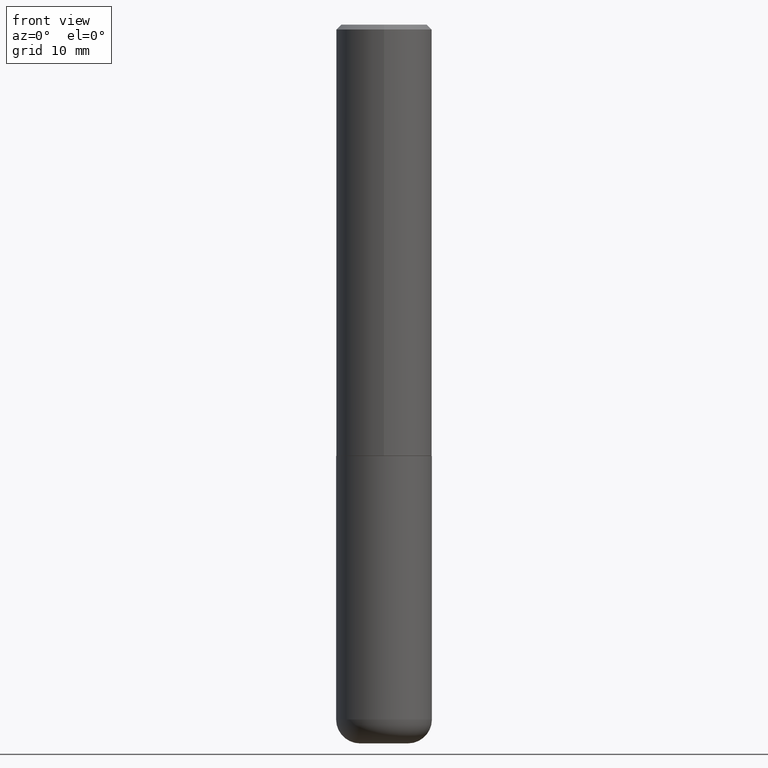
[diagram: clean part render]
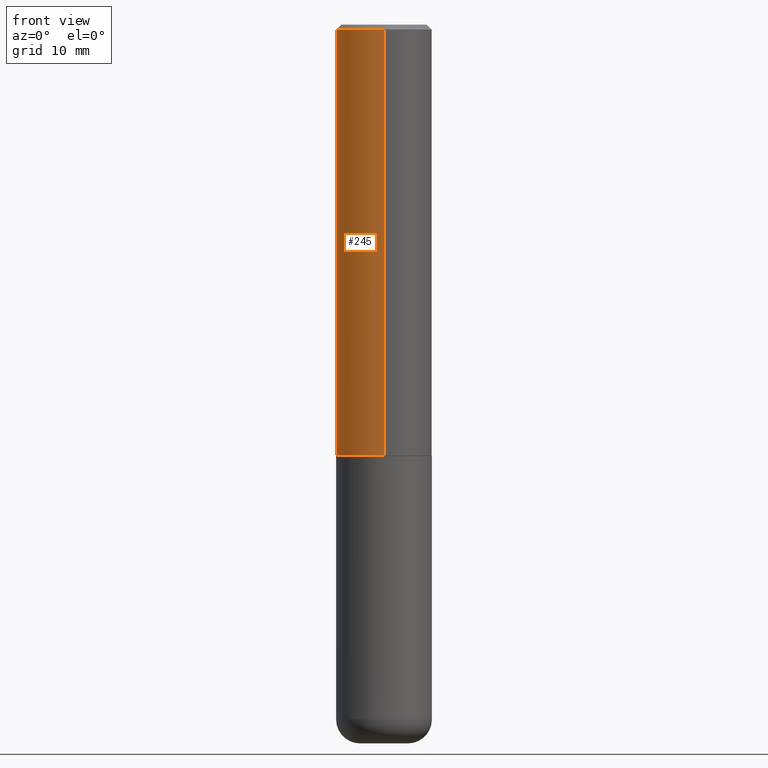
[diagram: same view with one face highlighted and labeled with its STEP entity id]
A machine part, front view. The second image highlights one B-rep face of the part: STEP entity #245.
In plain terms, the highlighted cylindrical surface (partial cylindrical patch) has radius 5 mm, axis along (-0, 0, 1).
Its self-contained STEP definition (entity closure, byte-faithful):
#9 = VERTEX_POINT ( 'NONE', #370 ) ;
#38 = CARTESIAN_POINT ( 'NONE',  ( 4.887940759376938213E-31, -6.987254341743056504E-17, -0.02000000000000004205 ) ) ;
#43 = CARTESIAN_POINT ( 'NONE',  ( 1.398703375343757985E-15, 0.1968500000000001360, -6.877205085860593881E-16 ) ) ;
#56 = AXIS2_PLACEMENT_3D ( 'NONE', #381, #92, #351 ) ;
#59 = CARTESIAN_POINT ( 'NONE',  ( -1.350489030861325626E-15, -0.1968500000000001082, -0.01999999999999935510 ) ) ;
#92 = DIRECTION ( 'NONE',  ( -2.443970379688463607E-29, 3.493627170871520955E-15, 1.000000000000000000 ) ) ;
#133 = EDGE_CURVE ( 'NONE', #9, #208, #201, .T. ) ;
#142 = DIRECTION ( 'NONE',  ( -2.443970379688463326E-29, 3.493627170871520561E-15, 1.000000000000000000 ) ) ;
#151 = ORIENTED_EDGE ( 'NONE', *, *, #317, .F. ) ;
#154 = CARTESIAN_POINT ( 'NONE',  ( 1.374596203102542200E-15, 0.1968499999999999694, -0.02000000000000072900 ) ) ;
#156 = CIRCLE ( 'NONE', #322, 0.1968500000000000527 ) ;
#165 = DIRECTION ( 'NONE',  ( -2.443970379688463607E-29, 3.493627170871520955E-15, 1.000000000000000000 ) ) ;
#166 = EDGE_CURVE ( 'NONE', #390, #205, #156, .T. ) ;
#200 = ORIENTED_EDGE ( 'NONE', *, *, #166, .F. ) ;
#201 = CIRCLE ( 'NONE', #307, 0.1968500000000002470 ) ;
#205 = VERTEX_POINT ( 'NONE', #59 ) ;
#208 = VERTEX_POINT ( 'NONE', #355 ) ;
#222 = CARTESIAN_POINT ( 'NONE',  ( -1.374596203102542397E-15, -0.1968500000000001360, 6.877205085860593881E-16 ) ) ;
#245 = ADVANCED_FACE ( 'NONE', ( #281 ), #254, .T. ) ;
#246 = DIRECTION ( 'NONE',  ( -2.443970379688463326E-29, 3.493627170871520561E-15, 1.000000000000000000 ) ) ;
#250 = LINE ( 'NONE', #222, #345 ) ;
#252 = CARTESIAN_POINT ( 'NONE',  ( 4.327538351314362007E-29, -6.186165631462201115E-15, -1.770699999999999497 ) ) ;
#254 = CYLINDRICAL_SURFACE ( 'NONE', #56, 0.1968500000000001360 ) ;
#259 = DIRECTION ( 'NONE',  ( -6.982962677686265133E-15, -1.000000000000000000, 3.491137977679279029E-15 ) ) ;
#274 = EDGE_LOOP ( 'NONE', ( #151, #275, #331, #200 ) ) ;
#275 = ORIENTED_EDGE ( 'NONE', *, *, #133, .T. ) ;
#281 = FACE_OUTER_BOUND ( 'NONE', #274, .T. ) ;
#289 = DIRECTION ( 'NONE',  ( -2.443970379688463607E-29, 3.493627170871520955E-15, 1.000000000000000000 ) ) ;
#307 = AXIS2_PLACEMENT_3D ( 'NONE', #252, #165, #316 ) ;
#314 = VECTOR ( 'NONE', #142, 39.37007874015748143 ) ;
#316 = DIRECTION ( 'NONE',  ( -6.982962677686265922E-15, -1.000000000000000000, 4.163344669033670112E-15 ) ) ;
#317 = EDGE_CURVE ( 'NONE', #9, #390, #391, .T. ) ;
#322 = AXIS2_PLACEMENT_3D ( 'NONE', #38, #289, #259 ) ;
#331 = ORIENTED_EDGE ( 'NONE', *, *, #413, .T. ) ;
#345 = VECTOR ( 'NONE', #246, 39.37007874015748143 ) ;
#351 = DIRECTION ( 'NONE',  ( -6.982962677686265922E-15, -1.000000000000000000, 3.493627170871520955E-15 ) ) ;
#355 = CARTESIAN_POINT ( 'NONE',  ( -1.374596203102499996E-15, -0.1968500000000064365, -1.770699999999998608 ) ) ;
#370 = CARTESIAN_POINT ( 'NONE',  ( 1.398703375343780073E-15, 0.1968499999999940575, -1.770700000000000385 ) ) ;
#381 = CARTESIAN_POINT ( 'NONE',  ( 0.000000000000000000, 0.000000000000000000, 0.000000000000000000 ) ) ;
#390 = VERTEX_POINT ( 'NONE', #154 ) ;
#391 = LINE ( 'NONE', #43, #314 ) ;
#413 = EDGE_CURVE ( 'NONE', #208, #205, #250, .T. ) ;